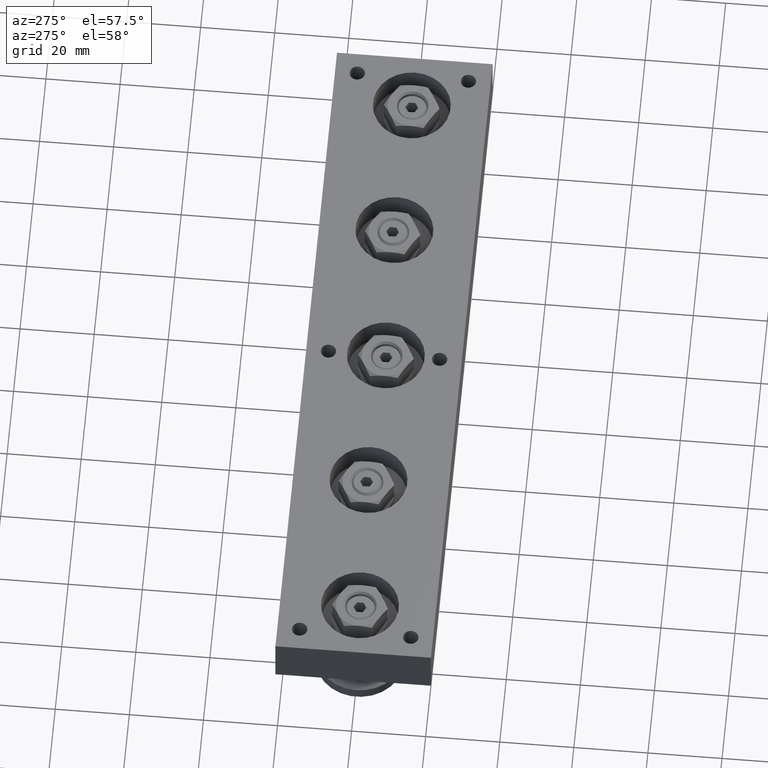
[diagram: clean part render]
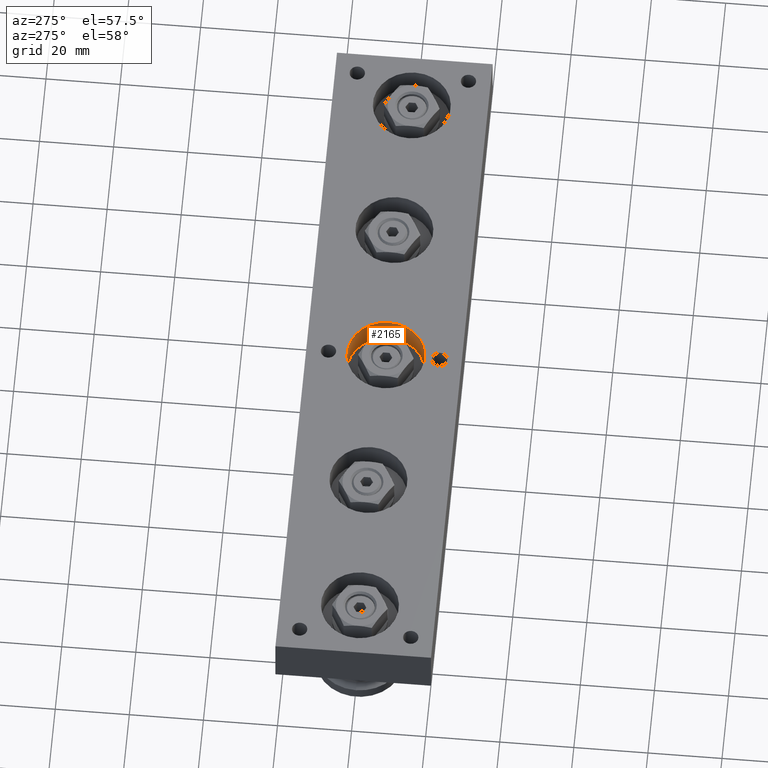
[diagram: same view with one face highlighted and labeled with its STEP entity id]
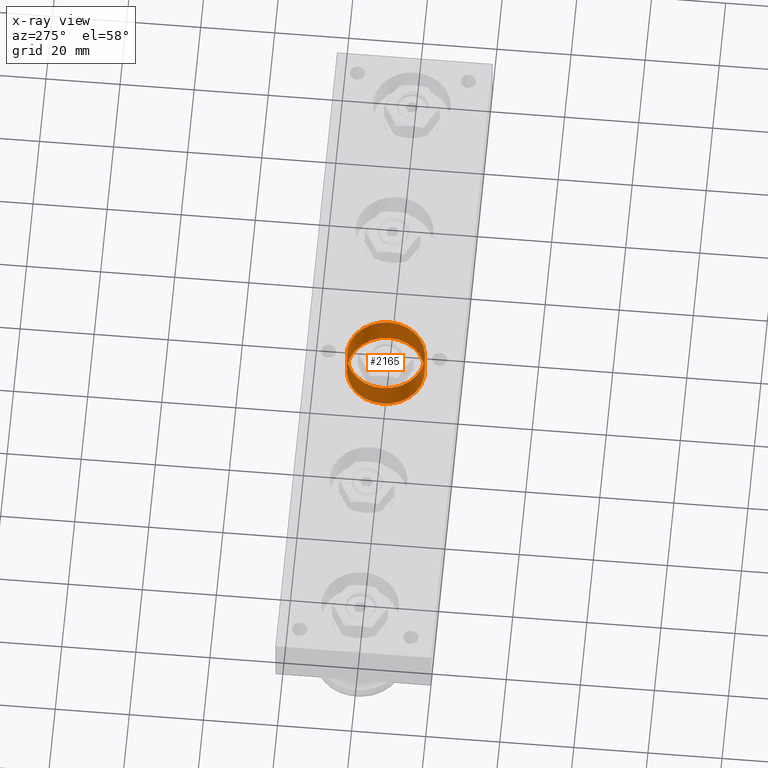
[diagram: x-ray of the same camera — body ghosted, the highlighted face saturated]
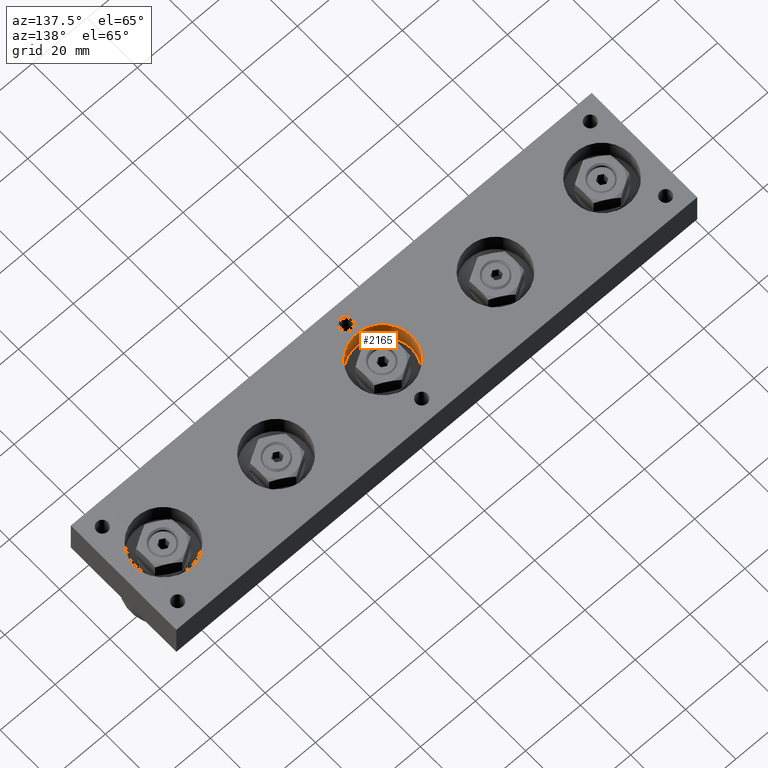
[diagram: same view with one face highlighted and labeled with its STEP entity id]
A machine part, auxiliary view. The second image highlights one B-rep face of the part: STEP entity #2165.
The next image is the same camera in x-ray: the body ghosted, the highlighted face saturated — about 0% of this face is hidden behind the body in this view.
A second angle (auxiliary view) of the same face is appended — the face is thin or edge-on in the first view.
In plain terms, the highlighted cylindrical surface (bore or boss wall) has radius 10.5 mm, axis along (0, 0, 1).
Its self-contained STEP definition (entity closure, byte-faithful):
#296=FACE_OUTER_BOUND('',#437,.T.);
#437=EDGE_LOOP('',(#1552,#1553,#1554,#1555));
#616=LINE('',#3608,#754);
#754=VECTOR('',#2888,10.5);
#902=CIRCLE('',#2536,10.5);
#904=CIRCLE('',#2539,10.5);
#1037=VERTEX_POINT('',#3601);
#1039=VERTEX_POINT('',#3606);
#1239=EDGE_CURVE('',#1037,#1037,#902,.T.);
#1241=EDGE_CURVE('',#1039,#1039,#904,.T.);
#1242=EDGE_CURVE('',#1039,#1037,#616,.T.);
#1552=ORIENTED_EDGE('',*,*,#1241,.F.);
#1553=ORIENTED_EDGE('',*,*,#1242,.T.);
#1554=ORIENTED_EDGE('',*,*,#1239,.F.);
#1555=ORIENTED_EDGE('',*,*,#1242,.F.);
#2110=CYLINDRICAL_SURFACE('',#2538,10.5);
#2165=ADVANCED_FACE('',(#296),#2110,.F.);
#2536=AXIS2_PLACEMENT_3D('',#3602,#2880,#2881);
#2538=AXIS2_PLACEMENT_3D('',#3605,#2884,#2885);
#2539=AXIS2_PLACEMENT_3D('',#3607,#2886,#2887);
#2880=DIRECTION('center_axis',(0.,0.,1.));
#2881=DIRECTION('ref_axis',(1.,0.,0.));
#2884=DIRECTION('center_axis',(0.,0.,1.));
#2885=DIRECTION('ref_axis',(1.,0.,0.));
#2886=DIRECTION('center_axis',(0.,0.,-1.));
#2887=DIRECTION('ref_axis',(1.,0.,0.));
#2888=DIRECTION('',(0.,0.,-1.));
#3601=CARTESIAN_POINT('',(-10.5,-0.5,6.2));
#3602=CARTESIAN_POINT('Origin',(0.,-0.499999999999998,6.2));
#3605=CARTESIAN_POINT('Origin',(0.,-0.499999999999998,10.1));
#3606=CARTESIAN_POINT('',(-10.5,-0.5,14.));
#3607=CARTESIAN_POINT('Origin',(0.,-0.499999999999998,14.));
#3608=CARTESIAN_POINT('',(-10.5,-0.5,10.1));